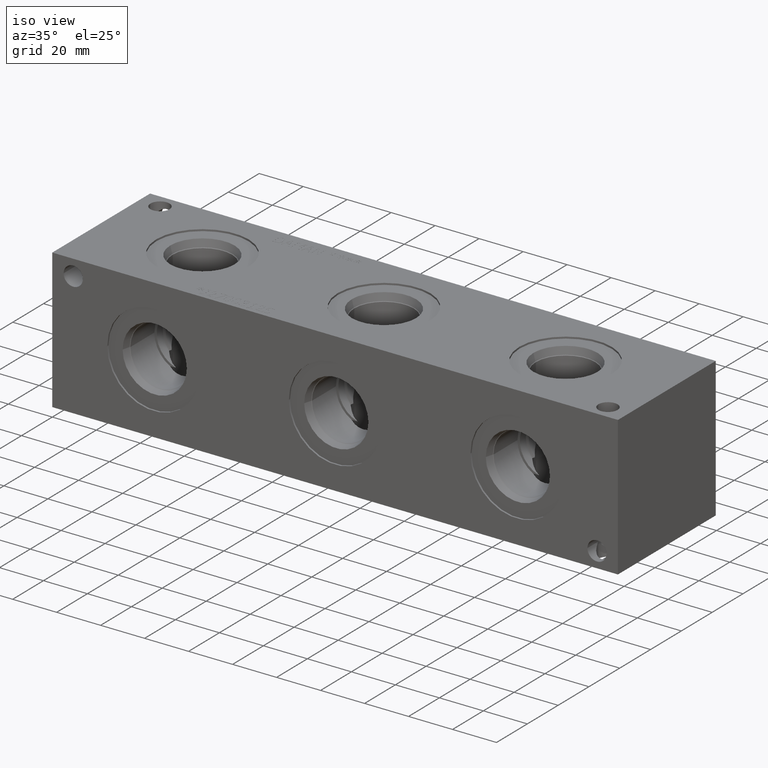
[diagram: clean part render]
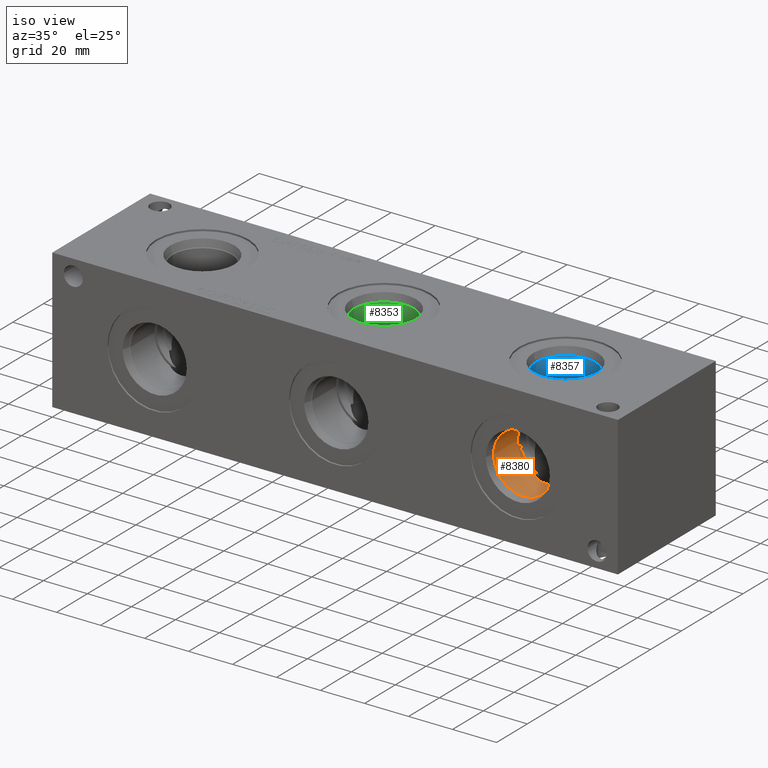
[diagram: same view with three faces highlighted in distinct colors, each labeled with its STEP entity id]
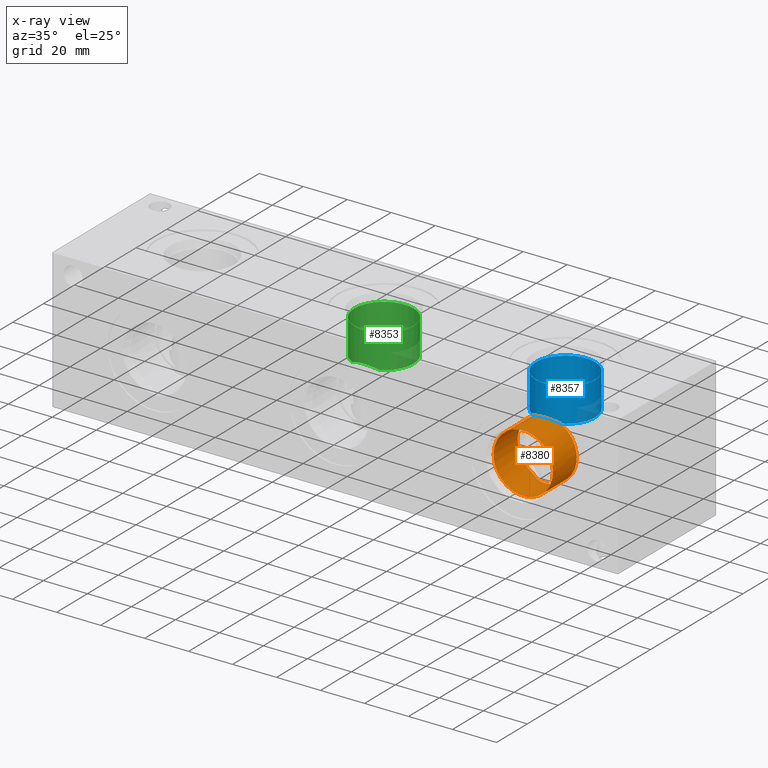
[diagram: x-ray of the same camera — body ghosted, the three highlighted faces saturated]
A machine part, iso view with three faces highlighted in distinct colors.
The next image is the same camera in x-ray (body ghosted, the three faces saturated) — at least one of them is partly hidden behind the body in this view.
Their STEP definitions:

[orange] entity #8380 — the highlighted cylindrical surface (bore or boss wall) has radius 13.5001 mm, axis along (0, -1, 0).
#29=ELLIPSE('',#8746,19.092024513393,13.5001);
#40=ELLIPSE('',#8869,19.092024513393,13.5001);
#141=CYLINDRICAL_SURFACE('',#8929,13.5001);
#229=CIRCLE('',#8785,13.5001);
#250=CIRCLE('',#8816,13.5001);
#307=CIRCLE('',#8927,13.5001);
#308=CIRCLE('',#8928,13.5001);
#1112=FACE_OUTER_BOUND('',#1584,.T.);
#1584=EDGE_LOOP('',(#7275,#7276,#7277,#7278,#7279,#7280,#7281,#7282));
#2344=LINE('',#14494,#3085);
#3085=VECTOR('',#10725,13.5001);
#3755=VERTEX_POINT('',#14113);
#3758=VERTEX_POINT('',#14118);
#3775=VERTEX_POINT('',#14206);
#3796=VERTEX_POINT('',#14266);
#3824=VERTEX_POINT('',#14363);
#3852=VERTEX_POINT('',#14490);
#4850=EDGE_CURVE('',#3758,#3755,#29,.T.);
#4882=EDGE_CURVE('',#3758,#3775,#229,.T.);
#4912=EDGE_CURVE('',#3796,#3796,#250,.T.);
#4960=EDGE_CURVE('',#3824,#3775,#40,.T.);
#5013=EDGE_CURVE('',#3824,#3852,#307,.T.);
#5014=EDGE_CURVE('',#3852,#3755,#308,.T.);
#5015=EDGE_CURVE('',#3796,#3852,#2344,.T.);
#7275=ORIENTED_EDGE('',*,*,#4912,.T.);
#7276=ORIENTED_EDGE('',*,*,#5015,.T.);
#7277=ORIENTED_EDGE('',*,*,#5013,.F.);
#7278=ORIENTED_EDGE('',*,*,#4960,.T.);
#7279=ORIENTED_EDGE('',*,*,#4882,.F.);
#7280=ORIENTED_EDGE('',*,*,#4850,.T.);
#7281=ORIENTED_EDGE('',*,*,#5014,.F.);
#7282=ORIENTED_EDGE('',*,*,#5015,.F.);
#8380=ADVANCED_FACE('',(#1112),#141,.F.);
#8746=AXIS2_PLACEMENT_3D('',#14125,#10319,#10320);
#8785=AXIS2_PLACEMENT_3D('',#14207,#10400,#10401);
#8816=AXIS2_PLACEMENT_3D('',#14268,#10471,#10472);
#8869=AXIS2_PLACEMENT_3D('',#14370,#10589,#10590);
#8927=AXIS2_PLACEMENT_3D('',#14491,#10719,#10720);
#8928=AXIS2_PLACEMENT_3D('',#14492,#10721,#10722);
#8929=AXIS2_PLACEMENT_3D('',#14493,#10723,#10724);
#10319=DIRECTION('center_axis',(0.,0.707106781186548,-0.707106781186548));
#10320=DIRECTION('ref_axis',(0.,-0.707106781186548,-0.707106781186548));
#10400=DIRECTION('center_axis',(0.,-1.,0.));
#10401=DIRECTION('ref_axis',(1.,0.,0.));
#10471=DIRECTION('center_axis',(0.,-1.,0.));
#10472=DIRECTION('ref_axis',(1.,0.,0.));
#10589=DIRECTION('center_axis',(0.,0.707106781186547,0.707106781186548));
#10590=DIRECTION('ref_axis',(0.,0.707106781186548,-0.707106781186547));
#10719=DIRECTION('center_axis',(0.,-1.,0.));
#10720=DIRECTION('ref_axis',(1.,0.,0.));
#10721=DIRECTION('center_axis',(0.,-1.,0.));
#10722=DIRECTION('ref_axis',(1.,0.,0.));
#10723=DIRECTION('center_axis',(0.,-1.,0.));
#10724=DIRECTION('ref_axis',(1.,0.,0.));
#10725=DIRECTION('',(0.,1.,0.));
#14113=CARTESIAN_POINT('',(204.773212698388,19.8374,19.8374));
#14118=CARTESIAN_POINT('',(217.476387301612,19.8374,19.8374));
#14125=CARTESIAN_POINT('Origin',(211.1248,31.75,31.75));
#14206=CARTESIAN_POINT('',(217.476387301612,19.8374,43.6626));
#14207=CARTESIAN_POINT('Origin',(211.1248,19.8374,31.75));
#14266=CARTESIAN_POINT('',(197.6247,4.27990000000001,31.75));
#14268=CARTESIAN_POINT('Origin',(211.1248,4.27990000000001,31.75));
#14363=CARTESIAN_POINT('',(204.773212698388,19.8374,43.6626));
#14370=CARTESIAN_POINT('Origin',(211.1248,31.75,31.75));
#14490=CARTESIAN_POINT('',(197.6247,19.8374,31.75));
#14491=CARTESIAN_POINT('Origin',(211.1248,19.8374,31.75));
#14492=CARTESIAN_POINT('Origin',(211.1248,19.8374,31.75));
#14493=CARTESIAN_POINT('Origin',(211.1248,9.9187,31.75));
#14494=CARTESIAN_POINT('',(197.6247,9.9187,31.75));

[blue] entity #8357 — the highlighted cylindrical surface (bore or boss wall) has radius 13.5001 mm, axis along (0, 0, 1).
#40=ELLIPSE('',#8869,19.092024513393,13.5001);
#127=CYLINDRICAL_SURFACE('',#8868,13.5001);
#259=CIRCLE('',#8830,13.5001);
#279=CIRCLE('',#8865,13.5001);
#280=CIRCLE('',#8866,13.5001);
#1089=FACE_OUTER_BOUND('',#1560,.T.);
#1560=EDGE_LOOP('',(#7151,#7152,#7153,#7154,#7155,#7156));
#2329=LINE('',#14369,#3070);
#3070=VECTOR('',#10588,13.5001);
#3775=VERTEX_POINT('',#14206);
#3805=VERTEX_POINT('',#14293);
#3823=VERTEX_POINT('',#14361);
#3824=VERTEX_POINT('',#14363);
#4925=EDGE_CURVE('',#3805,#3805,#259,.T.);
#4955=EDGE_CURVE('',#3775,#3823,#279,.T.);
#4956=EDGE_CURVE('',#3823,#3824,#280,.T.);
#4959=EDGE_CURVE('',#3805,#3823,#2329,.T.);
#4960=EDGE_CURVE('',#3824,#3775,#40,.T.);
#7151=ORIENTED_EDGE('',*,*,#4925,.T.);
#7152=ORIENTED_EDGE('',*,*,#4959,.T.);
#7153=ORIENTED_EDGE('',*,*,#4955,.F.);
#7154=ORIENTED_EDGE('',*,*,#4960,.F.);
#7155=ORIENTED_EDGE('',*,*,#4956,.F.);
#7156=ORIENTED_EDGE('',*,*,#4959,.F.);
#8357=ADVANCED_FACE('',(#1089),#127,.F.);
#8830=AXIS2_PLACEMENT_3D('',#14295,#10503,#10504);
#8865=AXIS2_PLACEMENT_3D('',#14362,#10579,#10580);
#8866=AXIS2_PLACEMENT_3D('',#14364,#10581,#10582);
#8868=AXIS2_PLACEMENT_3D('',#14368,#10586,#10587);
#8869=AXIS2_PLACEMENT_3D('',#14370,#10589,#10590);
#10503=DIRECTION('center_axis',(0.,0.,1.));
#10504=DIRECTION('ref_axis',(1.,0.,0.));
#10579=DIRECTION('center_axis',(0.,0.,1.));
#10580=DIRECTION('ref_axis',(1.,0.,0.));
#10581=DIRECTION('center_axis',(0.,0.,1.));
#10582=DIRECTION('ref_axis',(1.,0.,0.));
#10586=DIRECTION('center_axis',(0.,0.,1.));
#10587=DIRECTION('ref_axis',(1.,0.,0.));
#10588=DIRECTION('',(0.,0.,-1.));
#10589=DIRECTION('center_axis',(0.,0.707106781186547,0.707106781186548));
#10590=DIRECTION('ref_axis',(0.,0.707106781186548,-0.707106781186547));
#14206=CARTESIAN_POINT('',(217.476387301612,19.8374,43.6626));
#14293=CARTESIAN_POINT('',(197.6247,31.75,59.2201));
#14295=CARTESIAN_POINT('Origin',(211.1248,31.75,59.2201));
#14361=CARTESIAN_POINT('',(197.6247,31.75,43.6626));
#14362=CARTESIAN_POINT('Origin',(211.1248,31.75,43.6626));
#14363=CARTESIAN_POINT('',(204.773212698388,19.8374,43.6626));
#14364=CARTESIAN_POINT('Origin',(211.1248,31.75,43.6626));
#14368=CARTESIAN_POINT('Origin',(211.1248,31.75,53.5813));
#14369=CARTESIAN_POINT('',(197.6247,31.75,53.5813));
#14370=CARTESIAN_POINT('Origin',(211.1248,31.75,31.75));

[green] entity #8353 — the highlighted cylindrical surface (bore or boss wall) has radius 13.5001 mm, axis along (0, 0, 1).
#38=ELLIPSE('',#8859,19.092024513393,13.5001);
#125=CYLINDRICAL_SURFACE('',#8857,13.5001);
#274=CIRCLE('',#8854,13.5001);
#275=CIRCLE('',#8855,13.5001);
#277=CIRCLE('',#8858,13.5001);
#1085=FACE_OUTER_BOUND('',#1556,.T.);
#1556=EDGE_LOOP('',(#7132,#7133,#7134,#7135,#7136,#7137));
#2327=LINE('',#14349,#3068);
#3068=VECTOR('',#10566,13.5001);
#3763=VERTEX_POINT('',#14147);
#3818=VERTEX_POINT('',#14339);
#3819=VERTEX_POINT('',#14341);
#3821=VERTEX_POINT('',#14347);
#4945=EDGE_CURVE('',#3763,#3818,#274,.T.);
#4946=EDGE_CURVE('',#3818,#3819,#275,.T.);
#4949=EDGE_CURVE('',#3821,#3821,#277,.T.);
#4950=EDGE_CURVE('',#3821,#3818,#2327,.T.);
#4951=EDGE_CURVE('',#3819,#3763,#38,.T.);
#7132=ORIENTED_EDGE('',*,*,#4949,.F.);
#7133=ORIENTED_EDGE('',*,*,#4950,.T.);
#7134=ORIENTED_EDGE('',*,*,#4945,.F.);
#7135=ORIENTED_EDGE('',*,*,#4951,.F.);
#7136=ORIENTED_EDGE('',*,*,#4946,.F.);
#7137=ORIENTED_EDGE('',*,*,#4950,.F.);
#8353=ADVANCED_FACE('',(#1085),#125,.F.);
#8854=AXIS2_PLACEMENT_3D('',#14340,#10555,#10556);
#8855=AXIS2_PLACEMENT_3D('',#14342,#10557,#10558);
#8857=AXIS2_PLACEMENT_3D('',#14346,#10562,#10563);
#8858=AXIS2_PLACEMENT_3D('',#14348,#10564,#10565);
#8859=AXIS2_PLACEMENT_3D('',#14350,#10567,#10568);
#10555=DIRECTION('center_axis',(0.,0.,1.));
#10556=DIRECTION('ref_axis',(1.,0.,0.));
#10557=DIRECTION('center_axis',(0.,0.,1.));
#10558=DIRECTION('ref_axis',(1.,0.,0.));
#10562=DIRECTION('center_axis',(0.,0.,1.));
#10563=DIRECTION('ref_axis',(1.,0.,0.));
#10564=DIRECTION('center_axis',(0.,0.,-1.));
#10565=DIRECTION('ref_axis',(1.,0.,0.));
#10566=DIRECTION('',(0.,0.,-1.));
#10567=DIRECTION('center_axis',(0.,0.707106781186547,0.707106781186548));
#10568=DIRECTION('ref_axis',(0.,0.707106781186548,-0.707106781186547));
#14147=CARTESIAN_POINT('',(134.926387301612,19.8374,43.6626));
#14339=CARTESIAN_POINT('',(115.0747,31.75,43.6626));
#14340=CARTESIAN_POINT('Origin',(128.5748,31.75,43.6626));
#14341=CARTESIAN_POINT('',(122.223212698388,19.8374,43.6626));
#14342=CARTESIAN_POINT('Origin',(128.5748,31.75,43.6626));
#14346=CARTESIAN_POINT('Origin',(128.5748,31.75,53.5813));
#14347=CARTESIAN_POINT('',(115.0747,31.75,59.2201));
#14348=CARTESIAN_POINT('Origin',(128.5748,31.75,59.2201));
#14349=CARTESIAN_POINT('',(115.0747,31.75,53.5813));
#14350=CARTESIAN_POINT('Origin',(128.5748,31.75,31.75));